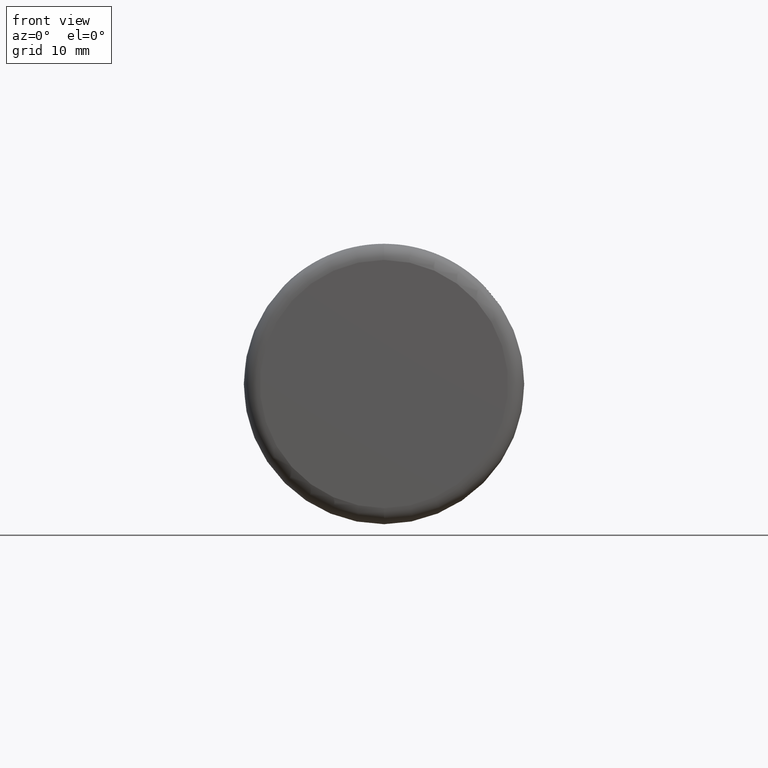
[diagram: clean part render]
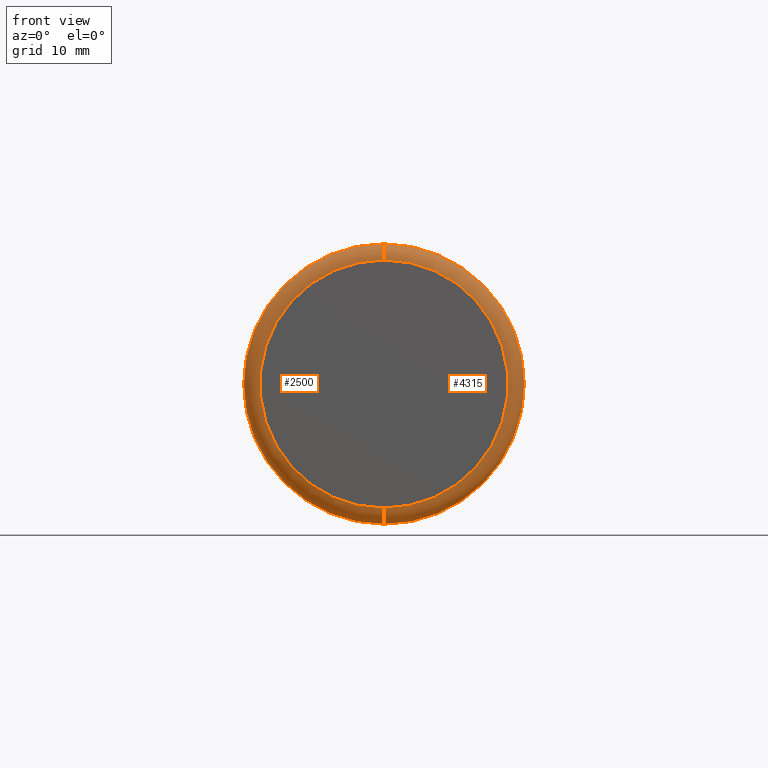
[diagram: same view with one multi-face feature highlighted, each face labeled with its STEP entity id]
A machine part, front view. The highlighted faces form ONE feature: a constant-radius fillet chain: 2 tangent blend faces with common blend radius 1.4976 mm. The faces share edges in the B-rep.
Their STEP definitions:
[1] entity #2500 (Torus):
#18 = ORIENTED_EDGE ( 'NONE', *, *, #3526, .T. ) ;
#97 = DIRECTION ( 'NONE',  ( 0.0000000000000000000, 0.0000000000000000000, 1.000000000000000000 ) ) ;
#135 = VERTEX_POINT ( 'NONE', #2842 ) ;
#332 = DIRECTION ( 'NONE',  ( 0.0000000000000000000, 1.000000000000000000, 0.0000000000000000000 ) ) ;
#437 = DIRECTION ( 'NONE',  ( 0.0000000000000000000, 1.000000000000000000, 0.0000000000000000000 ) ) ;
#467 = AXIS2_PLACEMENT_3D ( 'NONE', #2570, #332, #2461 ) ;
#725 = EDGE_CURVE ( 'NONE', #1886, #135, #2228, .T. ) ;
#814 = CARTESIAN_POINT ( 'NONE',  ( 1.592040838891559500E-015, 1.497600000000001600, -13.00000000000000200 ) ) ;
#1314 = CARTESIAN_POINT ( 'NONE',  ( 1.408637734251251800E-015, 1.497600000000001600, -11.50240000000000200 ) ) ;
#1402 = CIRCLE ( 'NONE', #2771, 11.50240000000000200 ) ;
#1669 = DIRECTION ( 'NONE',  ( 1.000000000000000000, -0.0000000000000000000, 1.224646799147353200E-016 ) ) ;
#1694 = CARTESIAN_POINT ( 'NONE',  ( 0.0000000000000000000, 1.497600000000001600, 0.0000000000000000000 ) ) ;
#1824 = CARTESIAN_POINT ( 'NONE',  ( 0.0000000000000000000, 0.0000000000000000000, 0.0000000000000000000 ) ) ;
#1886 = VERTEX_POINT ( 'NONE', #814 ) ;
#2228 = CIRCLE ( 'NONE', #467, 13.00000000000000200 ) ;
#2461 = DIRECTION ( 'NONE',  ( 0.0000000000000000000, 0.0000000000000000000, 1.000000000000000000 ) ) ;
#2500 = ADVANCED_FACE ( 'NONE', ( #4453 ), #3348, .T. ) ;
#2514 = EDGE_CURVE ( 'NONE', #4669, #3627, #1402, .T. ) ;
#2517 = CARTESIAN_POINT ( 'NONE',  ( 0.0000000000000000000, 1.497600000000001600, 11.50240000000000200 ) ) ;
#2570 = CARTESIAN_POINT ( 'NONE',  ( 0.0000000000000000000, 1.497600000000001600, 0.0000000000000000000 ) ) ;
#2757 = EDGE_CURVE ( 'NONE', #3627, #1886, #3632, .T. ) ;
#2771 = AXIS2_PLACEMENT_3D ( 'NONE', #1824, #3298, #2990 ) ;
#2842 = CARTESIAN_POINT ( 'NONE',  ( 0.0000000000000000000, 1.497600000000001600, 13.00000000000000200 ) ) ;
#2990 = DIRECTION ( 'NONE',  ( 0.0000000000000000000, 0.0000000000000000000, 1.000000000000000000 ) ) ;
#3268 = DIRECTION ( 'NONE',  ( -1.000000000000000000, 0.0000000000000000000, 0.0000000000000000000 ) ) ;
#3298 = DIRECTION ( 'NONE',  ( -0.0000000000000000000, -1.000000000000000000, -0.0000000000000000000 ) ) ;
#3348 = TOROIDAL_SURFACE ( 'NONE', #4505, 11.50240000000000200, 1.497600000000000000 ) ;
#3526 = EDGE_CURVE ( 'NONE', #4669, #135, #4655, .T. ) ;
#3601 = ORIENTED_EDGE ( 'NONE', *, *, #725, .F. ) ;
#3626 = DIRECTION ( 'NONE',  ( 0.0000000000000000000, 0.0000000000000000000, 1.000000000000000000 ) ) ;
#3627 = VERTEX_POINT ( 'NONE', #4084 ) ;
#3632 = CIRCLE ( 'NONE', #4537, 1.497600000000000000 ) ;
#3812 = CARTESIAN_POINT ( 'NONE',  ( 0.0000000000000000000, 0.0000000000000000000, 11.50240000000000200 ) ) ;
#3849 = ORIENTED_EDGE ( 'NONE', *, *, #2514, .F. ) ;
#4084 = CARTESIAN_POINT ( 'NONE',  ( 1.500339286571405600E-015, 0.0000000000000000000, -11.50240000000000200 ) ) ;
#4193 = ORIENTED_EDGE ( 'NONE', *, *, #2757, .F. ) ;
#4256 = DIRECTION ( 'NONE',  ( 1.224646799147353900E-016, 0.0000000000000000000, -1.000000000000000000 ) ) ;
#4299 = EDGE_LOOP ( 'NONE', ( #4193, #3849, #18, #3601 ) ) ;
#4453 = FACE_OUTER_BOUND ( 'NONE', #4299, .T. ) ;
#4457 = AXIS2_PLACEMENT_3D ( 'NONE', #2517, #3268, #3626 ) ;
#4505 = AXIS2_PLACEMENT_3D ( 'NONE', #1694, #437, #97 ) ;
#4537 = AXIS2_PLACEMENT_3D ( 'NONE', #1314, #1669, #4256 ) ;
#4655 = CIRCLE ( 'NONE', #4457, 1.497600000000000000 ) ;
#4669 = VERTEX_POINT ( 'NONE', #3812 ) ;
[2] entity #4315 (Torus):
#135 = VERTEX_POINT ( 'NONE', #2842 ) ;
#140 = ORIENTED_EDGE ( 'NONE', *, *, #3526, .F. ) ;
#318 = EDGE_CURVE ( 'NONE', #3627, #4669, #2642, .T. ) ;
#456 = DIRECTION ( 'NONE',  ( 0.0000000000000000000, 0.0000000000000000000, 1.000000000000000000 ) ) ;
#577 = DIRECTION ( 'NONE',  ( 0.0000000000000000000, 0.0000000000000000000, 1.000000000000000000 ) ) ;
#814 = CARTESIAN_POINT ( 'NONE',  ( 1.592040838891559500E-015, 1.497600000000001600, -13.00000000000000200 ) ) ;
#1162 = CIRCLE ( 'NONE', #4611, 13.00000000000000200 ) ;
#1314 = CARTESIAN_POINT ( 'NONE',  ( 1.408637734251251800E-015, 1.497600000000001600, -11.50240000000000200 ) ) ;
#1669 = DIRECTION ( 'NONE',  ( 1.000000000000000000, -0.0000000000000000000, 1.224646799147353200E-016 ) ) ;
#1886 = VERTEX_POINT ( 'NONE', #814 ) ;
#2167 = CARTESIAN_POINT ( 'NONE',  ( 0.0000000000000000000, 0.0000000000000000000, 0.0000000000000000000 ) ) ;
#2392 = EDGE_LOOP ( 'NONE', ( #3807, #2991, #4018, #140 ) ) ;
#2517 = CARTESIAN_POINT ( 'NONE',  ( 0.0000000000000000000, 1.497600000000001600, 11.50240000000000200 ) ) ;
#2642 = CIRCLE ( 'NONE', #3063, 11.50240000000000200 ) ;
#2757 = EDGE_CURVE ( 'NONE', #3627, #1886, #3632, .T. ) ;
#2842 = CARTESIAN_POINT ( 'NONE',  ( 0.0000000000000000000, 1.497600000000001600, 13.00000000000000200 ) ) ;
#2991 = ORIENTED_EDGE ( 'NONE', *, *, #2757, .T. ) ;
#3063 = AXIS2_PLACEMENT_3D ( 'NONE', #2167, #4424, #3317 ) ;
#3268 = DIRECTION ( 'NONE',  ( -1.000000000000000000, 0.0000000000000000000, 0.0000000000000000000 ) ) ;
#3317 = DIRECTION ( 'NONE',  ( 0.0000000000000000000, 0.0000000000000000000, 1.000000000000000000 ) ) ;
#3401 = FACE_OUTER_BOUND ( 'NONE', #2392, .T. ) ;
#3526 = EDGE_CURVE ( 'NONE', #4669, #135, #4655, .T. ) ;
#3626 = DIRECTION ( 'NONE',  ( 0.0000000000000000000, 0.0000000000000000000, 1.000000000000000000 ) ) ;
#3627 = VERTEX_POINT ( 'NONE', #4084 ) ;
#3632 = CIRCLE ( 'NONE', #4537, 1.497600000000000000 ) ;
#3807 = ORIENTED_EDGE ( 'NONE', *, *, #318, .F. ) ;
#3812 = CARTESIAN_POINT ( 'NONE',  ( 0.0000000000000000000, 0.0000000000000000000, 11.50240000000000200 ) ) ;
#3994 = TOROIDAL_SURFACE ( 'NONE', #4070, 11.50240000000000200, 1.497600000000000000 ) ;
#4018 = ORIENTED_EDGE ( 'NONE', *, *, #4753, .F. ) ;
#4070 = AXIS2_PLACEMENT_3D ( 'NONE', #4512, #4546, #456 ) ;
#4084 = CARTESIAN_POINT ( 'NONE',  ( 1.500339286571405600E-015, 0.0000000000000000000, -11.50240000000000200 ) ) ;
#4256 = DIRECTION ( 'NONE',  ( 1.224646799147353900E-016, 0.0000000000000000000, -1.000000000000000000 ) ) ;
#4274 = CARTESIAN_POINT ( 'NONE',  ( 0.0000000000000000000, 1.497600000000001600, 0.0000000000000000000 ) ) ;
#4315 = ADVANCED_FACE ( 'NONE', ( #3401 ), #3994, .T. ) ;
#4424 = DIRECTION ( 'NONE',  ( -0.0000000000000000000, -1.000000000000000000, -0.0000000000000000000 ) ) ;
#4457 = AXIS2_PLACEMENT_3D ( 'NONE', #2517, #3268, #3626 ) ;
#4512 = CARTESIAN_POINT ( 'NONE',  ( 0.0000000000000000000, 1.497600000000001600, 0.0000000000000000000 ) ) ;
#4537 = AXIS2_PLACEMENT_3D ( 'NONE', #1314, #1669, #4256 ) ;
#4546 = DIRECTION ( 'NONE',  ( 0.0000000000000000000, 1.000000000000000000, 0.0000000000000000000 ) ) ;
#4611 = AXIS2_PLACEMENT_3D ( 'NONE', #4274, #4638, #577 ) ;
#4638 = DIRECTION ( 'NONE',  ( 0.0000000000000000000, 1.000000000000000000, 0.0000000000000000000 ) ) ;
#4655 = CIRCLE ( 'NONE', #4457, 1.497600000000000000 ) ;
#4669 = VERTEX_POINT ( 'NONE', #3812 ) ;
#4753 = EDGE_CURVE ( 'NONE', #135, #1886, #1162, .T. ) ;